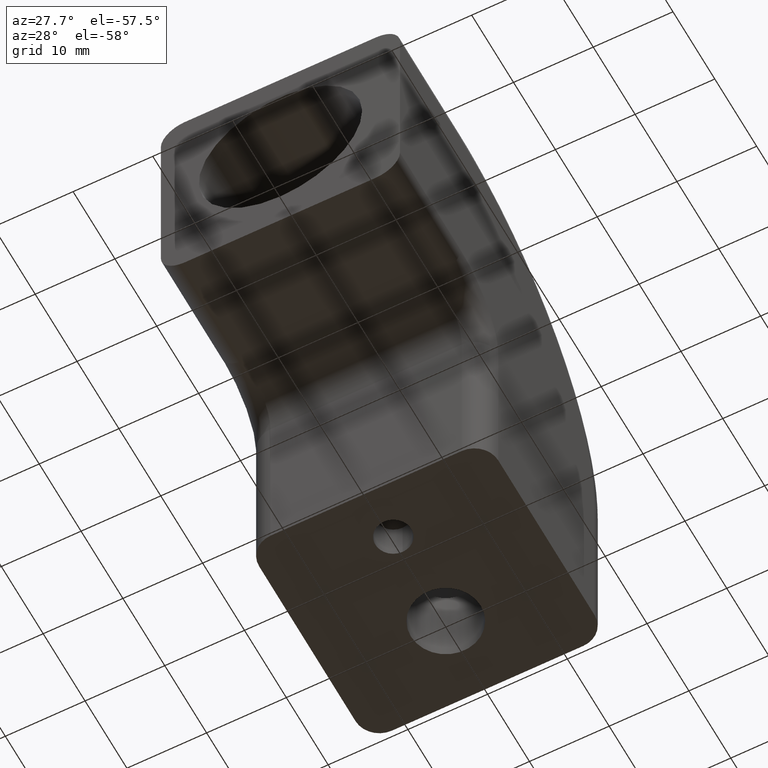
[diagram: clean part render]
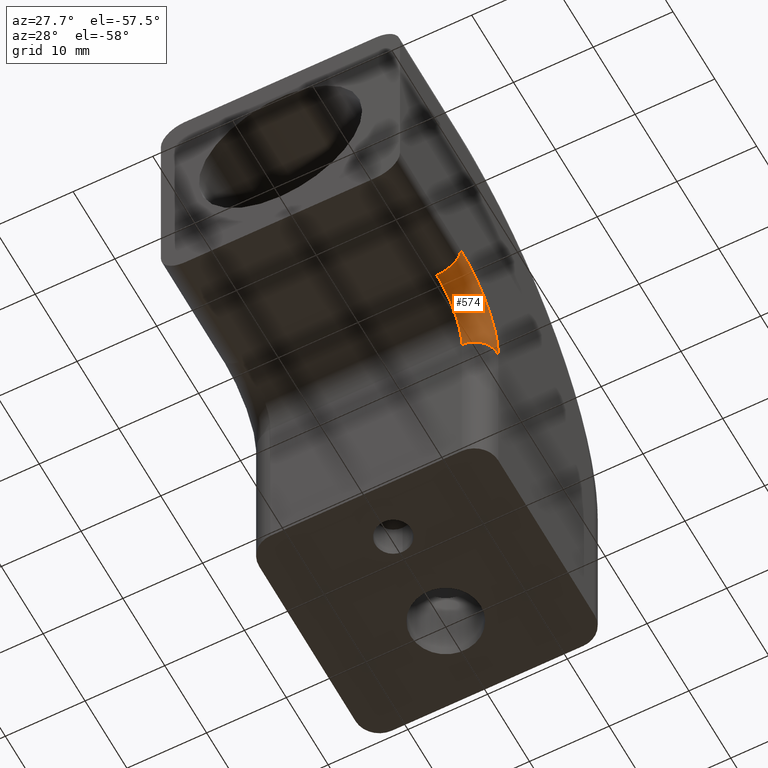
[diagram: same view with one face highlighted and labeled with its STEP entity id]
A machine part, auxiliary view. The second image highlights one B-rep face of the part: STEP entity #574.
In plain terms, the highlighted face is a freeform B-spline surface patch.
Its self-contained STEP definition (entity closure, byte-faithful):
#18=B_SPLINE_SURFACE_WITH_KNOTS('',3,3,((#1231,#1232,#1233,#1234,#1235,
#1236,#1237,#1238,#1239,#1240,#1241),(#1242,#1243,#1244,#1245,#1246,#1247,
#1248,#1249,#1250,#1251,#1252),(#1253,#1254,#1255,#1256,#1257,#1258,#1259,
#1260,#1261,#1262,#1263),(#1264,#1265,#1266,#1267,#1268,#1269,#1270,#1271,
#1272,#1273,#1274),(#1275,#1276,#1277,#1278,#1279,#1280,#1281,#1282,#1283,
#1284,#1285),(#1286,#1287,#1288,#1289,#1290,#1291,#1292,#1293,#1294,#1295,
#1296),(#1297,#1298,#1299,#1300,#1301,#1302,#1303,#1304,#1305,#1306,#1307)),
 .UNSPECIFIED.,.F.,.F.,.F.,(4,1,1,1,4),(4,1,1,1,1,1,1,1,4),(0.,1.17054193209677,
2.34108386419354,3.51162579629031,4.68216772838708),(0.,1.40983897744393,
2.81967795488786,4.22951693233179,5.63935590977572,7.04919488721965,8.45903386466358,
9.86887284210751,11.2787118195514),.UNSPECIFIED.);
#156=FACE_OUTER_BOUND('',#200,.T.);
#200=EDGE_LOOP('',(#521,#522,#523,#524));
#219=CIRCLE('',#610,3.);
#224=CIRCLE('',#617,3.);
#231=CIRCLE('',#631,9.);
#233=CIRCLE('',#635,6.);
#267=VERTEX_POINT('',#915);
#268=VERTEX_POINT('',#916);
#277=VERTEX_POINT('',#938);
#278=VERTEX_POINT('',#940);
#324=EDGE_CURVE('',#267,#268,#219,.T.);
#336=EDGE_CURVE('',#278,#277,#224,.T.);
#356=EDGE_CURVE('',#277,#268,#231,.T.);
#360=EDGE_CURVE('',#278,#267,#233,.T.);
#521=ORIENTED_EDGE('',*,*,#336,.T.);
#522=ORIENTED_EDGE('',*,*,#356,.T.);
#523=ORIENTED_EDGE('',*,*,#324,.F.);
#524=ORIENTED_EDGE('',*,*,#360,.F.);
#574=ADVANCED_FACE('',(#156),#18,.T.);
#610=AXIS2_PLACEMENT_3D('',#917,#727,#728);
#617=AXIS2_PLACEMENT_3D('',#941,#748,#749);
#631=AXIS2_PLACEMENT_3D('',#980,#789,#790);
#635=AXIS2_PLACEMENT_3D('',#986,#799,#800);
#727=DIRECTION('center_axis',(0.,-1.,0.));
#728=DIRECTION('ref_axis',(0.,0.,-1.));
#748=DIRECTION('center_axis',(0.,0.,1.));
#749=DIRECTION('ref_axis',(0.,-1.,0.));
#789=DIRECTION('center_axis',(1.,0.,0.));
#790=DIRECTION('ref_axis',(0.,-1.,0.));
#799=DIRECTION('center_axis',(1.,0.,0.));
#800=DIRECTION('ref_axis',(0.,-1.,0.));
#915=CARTESIAN_POINT('',(12.,-25.0049999999974,28.));
#916=CARTESIAN_POINT('',(15.,-25.0049999999974,31.));
#917=CARTESIAN_POINT('Origin',(12.,-25.0049999999974,31.));
#938=CARTESIAN_POINT('',(15.,-16.0049999999974,22.));
#940=CARTESIAN_POINT('',(12.,-19.0049999999974,22.));
#941=CARTESIAN_POINT('Origin',(12.,-16.0049999999974,22.));
#980=CARTESIAN_POINT('Origin',(15.,-25.0049999999974,22.));
#986=CARTESIAN_POINT('Origin',(12.,-25.0049999999974,22.));
#1231=CARTESIAN_POINT('Ctrl Pts',(12.,-19.0049999999974,22.));
#1232=CARTESIAN_POINT('Ctrl Pts',(12.,-19.0049999999974,22.3920685613182));
#1233=CARTESIAN_POINT('Ctrl Pts',(12.,-19.0823542101344,23.1783785859077));
#1234=CARTESIAN_POINT('Ctrl Pts',(12.,-19.4259901700015,24.3108236999262));
#1235=CARTESIAN_POINT('Ctrl Pts',(12.,-19.9840219394375,25.3549301795308));
#1236=CARTESIAN_POINT('Ctrl Pts',(12.,-20.7350160293411,26.2699839706563));
#1237=CARTESIAN_POINT('Ctrl Pts',(12.,-21.6500698204666,27.0209780605599));
#1238=CARTESIAN_POINT('Ctrl Pts',(12.,-22.6941763000712,27.5790098299959));
#1239=CARTESIAN_POINT('Ctrl Pts',(12.,-23.8266214140896,27.922645789863));
#1240=CARTESIAN_POINT('Ctrl Pts',(12.,-24.6129314386791,28.));
#1241=CARTESIAN_POINT('Ctrl Pts',(12.,-25.0049999999974,28.));
#1242=CARTESIAN_POINT('Ctrl Pts',(12.3901806440323,-19.0049999999974,22.));
#1243=CARTESIAN_POINT('Ctrl Pts',(12.3901806440323,-19.0049999999974,22.3920685613182));
#1244=CARTESIAN_POINT('Ctrl Pts',(12.3901806440323,-19.0823542101344,23.1783785859077));
#1245=CARTESIAN_POINT('Ctrl Pts',(12.3901806440323,-19.4259901700015,24.3108236999262));
#1246=CARTESIAN_POINT('Ctrl Pts',(12.3901806440323,-19.9840219394375,25.3549301795308));
#1247=CARTESIAN_POINT('Ctrl Pts',(12.3901806440323,-20.7350160293411,26.2699839706563));
#1248=CARTESIAN_POINT('Ctrl Pts',(12.3901806440323,-21.6500698204666,27.0209780605599));
#1249=CARTESIAN_POINT('Ctrl Pts',(12.3901806440323,-22.6941763000712,27.5790098299959));
#1250=CARTESIAN_POINT('Ctrl Pts',(12.3901806440323,-23.8266214140896,27.922645789863));
#1251=CARTESIAN_POINT('Ctrl Pts',(12.3901806440323,-24.6129314386791,28.));
#1252=CARTESIAN_POINT('Ctrl Pts',(12.3901806440323,-25.0049999999974,28.));
#1253=CARTESIAN_POINT('Ctrl Pts',(13.1790834520298,-18.84888367165,22.));
#1254=CARTESIAN_POINT('Ctrl Pts',(13.1790834520298,-18.84888367165,22.4022699453605));
#1255=CARTESIAN_POINT('Ctrl Pts',(13.1790834520298,-18.9282505909985,23.2090392756136));
#1256=CARTESIAN_POINT('Ctrl Pts',(13.1790834520298,-19.2808277482561,24.3709499185079));
#1257=CARTESIAN_POINT('Ctrl Pts',(13.1790834520298,-19.8533791628496,25.4422234097791));
#1258=CARTESIAN_POINT('Ctrl Pts',(13.1790834520298,-20.6239136594077,26.3810863405897));
#1259=CARTESIAN_POINT('Ctrl Pts',(13.1790834520298,-21.5627765902182,27.1516208371477));
#1260=CARTESIAN_POINT('Ctrl Pts',(13.1790834520298,-22.6340500814895,27.7241722517413));
#1261=CARTESIAN_POINT('Ctrl Pts',(13.1790834520298,-23.7959607243838,28.0767494089988));
#1262=CARTESIAN_POINT('Ctrl Pts',(13.1790834520298,-24.6027300546369,28.1561163283473));
#1263=CARTESIAN_POINT('Ctrl Pts',(13.1790834520298,-25.0049999999974,28.1561163283473));
#1264=CARTESIAN_POINT('Ctrl Pts',(14.1762387344188,-18.1812387344162,22.));
#1265=CARTESIAN_POINT('Ctrl Pts',(14.1762387344188,-18.1812387344162,22.4458970436959));
#1266=CARTESIAN_POINT('Ctrl Pts',(14.1762387344188,-18.2692131782267,23.3401623584513));
#1267=CARTESIAN_POINT('Ctrl Pts',(14.1762387344188,-18.6600281369603,24.6280848758572));
#1268=CARTESIAN_POINT('Ctrl Pts',(14.1762387344188,-19.2946740658338,25.8155404346353));
#1269=CARTESIAN_POINT('Ctrl Pts',(14.1762387344188,-20.1487747960613,26.8562252039361));
#1270=CARTESIAN_POINT('Ctrl Pts',(14.1762387344188,-21.1894595653621,27.7103259341635));
#1271=CARTESIAN_POINT('Ctrl Pts',(14.1762387344188,-22.3769151241402,28.3449718630371));
#1272=CARTESIAN_POINT('Ctrl Pts',(14.1762387344188,-23.6648376415461,28.7357868217707));
#1273=CARTESIAN_POINT('Ctrl Pts',(14.1762387344188,-24.5591029563015,28.8237612655812));
#1274=CARTESIAN_POINT('Ctrl Pts',(14.1762387344188,-25.0049999999974,28.8237612655812));
#1275=CARTESIAN_POINT('Ctrl Pts',(14.8438836716527,-17.1840834520272,22.));
#1276=CARTESIAN_POINT('Ctrl Pts',(14.8438836716527,-17.1840834520272,22.5110559165255));
#1277=CARTESIAN_POINT('Ctrl Pts',(14.8438836716527,-17.2849135890465,23.5360000970499));
#1278=CARTESIAN_POINT('Ctrl Pts',(14.8438836716527,-17.7328382832136,25.0121265523657));
#1279=CARTESIAN_POINT('Ctrl Pts',(14.8438836716527,-18.4602249331927,26.3731048263962));
#1280=CARTESIAN_POINT('Ctrl Pts',(14.8438836716527,-19.4391352840519,27.5658647159455));
#1281=CARTESIAN_POINT('Ctrl Pts',(14.8438836716527,-20.6318951736012,28.5447750668047));
#1282=CARTESIAN_POINT('Ctrl Pts',(14.8438836716527,-21.9928734476317,29.2721617167838));
#1283=CARTESIAN_POINT('Ctrl Pts',(14.8438836716527,-23.4689999029474,29.7200864109509));
#1284=CARTESIAN_POINT('Ctrl Pts',(14.8438836716527,-24.4939440834719,29.8209165479702));
#1285=CARTESIAN_POINT('Ctrl Pts',(14.8438836716527,-25.0049999999974,29.8209165479702));
#1286=CARTESIAN_POINT('Ctrl Pts',(15.,-16.3951806440296,22.));
#1287=CARTESIAN_POINT('Ctrl Pts',(15.,-16.3951806440296,22.5626065813507));
#1288=CARTESIAN_POINT('Ctrl Pts',(15.,-16.5061816066469,23.6909377929344));
#1289=CARTESIAN_POINT('Ctrl Pts',(15.,-16.9992888630919,25.3159624366422));
#1290=CARTESIAN_POINT('Ctrl Pts',(15.,-17.8000476513811,26.8142237996075));
#1291=CARTESIAN_POINT('Ctrl Pts',(15.,-18.8777015599593,28.127298440038));
#1292=CARTESIAN_POINT('Ctrl Pts',(15.,-20.1907762003899,29.2049523486163));
#1293=CARTESIAN_POINT('Ctrl Pts',(15.,-21.6890375633552,30.0057111369055));
#1294=CARTESIAN_POINT('Ctrl Pts',(15.,-23.314062207063,30.4988183933505));
#1295=CARTESIAN_POINT('Ctrl Pts',(15.,-24.4423934186467,30.6098193559677));
#1296=CARTESIAN_POINT('Ctrl Pts',(15.,-25.0049999999974,30.6098193559678));
#1297=CARTESIAN_POINT('Ctrl Pts',(15.,-16.0049999999974,22.));
#1298=CARTESIAN_POINT('Ctrl Pts',(15.,-16.0049999999974,22.5881028419774));
#1299=CARTESIAN_POINT('Ctrl Pts',(15.,-16.1210313152029,23.7675678788616));
#1300=CARTESIAN_POINT('Ctrl Pts',(15.,-16.6364852550036,25.4662355498893));
#1301=CARTESIAN_POINT('Ctrl Pts',(15.,-17.4735329091576,27.0323952692962));
#1302=CARTESIAN_POINT('Ctrl Pts',(15.,-18.600024044013,28.4049759559844));
#1303=CARTESIAN_POINT('Ctrl Pts',(15.,-19.9726047307012,29.5314670908398));
#1304=CARTESIAN_POINT('Ctrl Pts',(15.,-21.5387644501081,30.3685147449938));
#1305=CARTESIAN_POINT('Ctrl Pts',(15.,-23.2374321211358,30.8839686847945));
#1306=CARTESIAN_POINT('Ctrl Pts',(15.,-24.41689715802,31.));
#1307=CARTESIAN_POINT('Ctrl Pts',(15.,-25.0049999999974,31.));